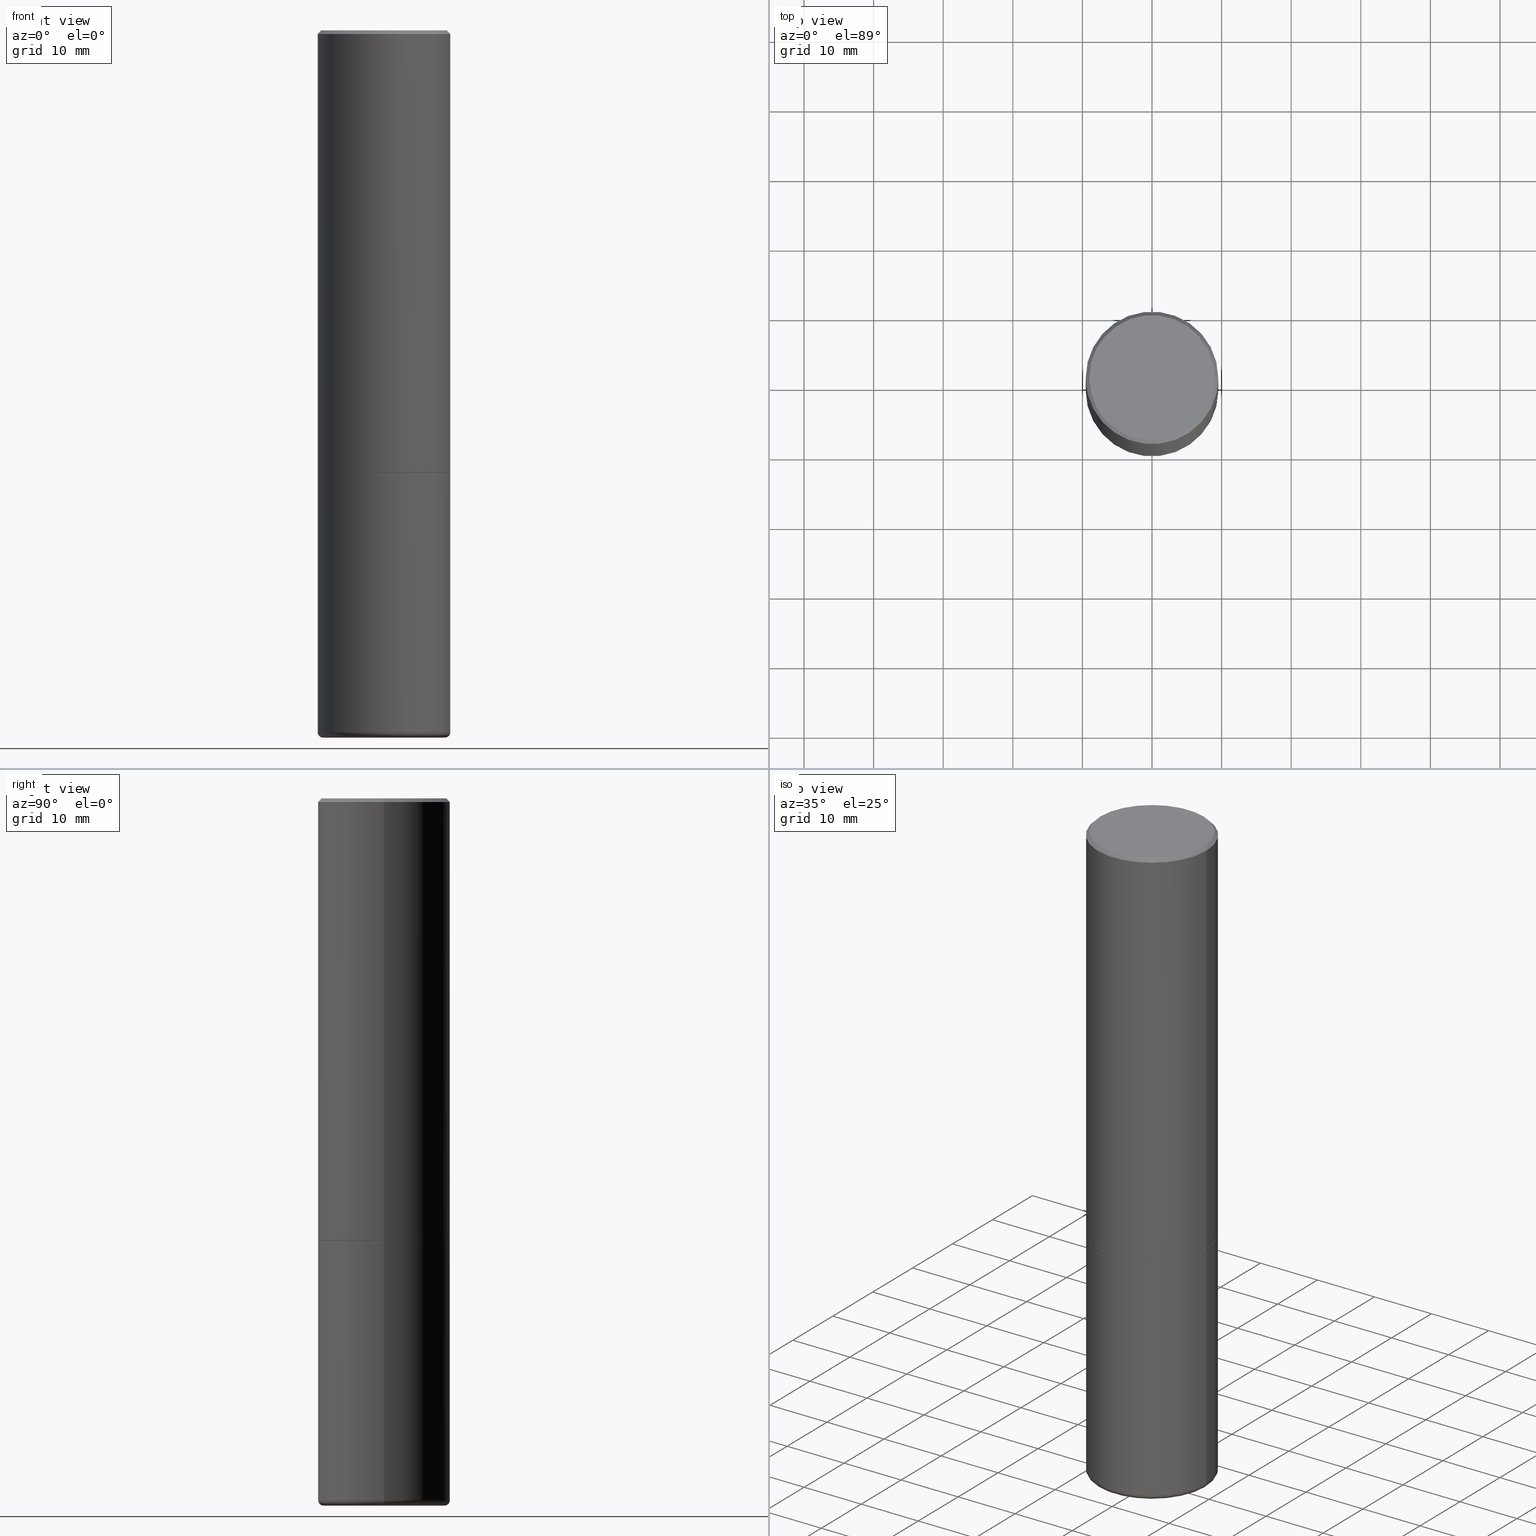
[diagram: canonical four-view strip — front | top / right | iso, engineering-drawing reading convention]
A machine part, canonical four-view strip (front | top / right | iso — engineering-drawing reading convention). The complete STEP part file that produces these views, byte-faithful:
ISO-10303-21;
HEADER;
FILE_DESCRIPTION (( 'STEP AP203' ),
    '1' );
FILE_NAME ('38187.STEP',
    '2023-03-22T20:31:44',
    ( '' ),
    ( '' ),
    'SwSTEP 2.0',
    'SolidWorks 2022',
    '' );
FILE_SCHEMA (( 'CONFIG_CONTROL_DESIGN' ));
ENDSEC;

DATA;
#1 = ADVANCED_FACE ( 'NONE', ( #288 ), #439, .T. ) ;
#2 = LINE ( 'NONE', #71, #294 ) ;
#3 = PLANE ( 'NONE',  #382 ) ;
#4 = CC_DESIGN_PERSON_AND_ORGANIZATION_ASSIGNMENT ( #216, #50, ( #195 ) ) ;
#5 = VERTEX_POINT ( 'NONE', #251 ) ;
#6 = VECTOR ( 'NONE', #188, 39.37007874015748143 ) ;
#7 = DIRECTION ( 'NONE',  ( 0.7071067811870063169, -2.468850131087062801E-15, 0.7071067811860887176 ) ) ;
#8 = DIRECTION ( 'NONE',  ( 1.000000000000000000, -6.982962677686268288E-15, 0.000000000000000000 ) ) ;
#9 = ORIENTED_EDGE ( 'NONE', *, *, #316, .F. ) ;
#10 = EDGE_CURVE ( 'NONE', #55, #329, #252, .T. ) ;
#11 = CARTESIAN_POINT ( 'NONE',  ( 6.113672015462842613E-29, -8.728703347107864943E-15, -2.500000000000000000 ) ) ;
#12 = VERTEX_POINT ( 'NONE', #256 ) ;
#13 = ORIENTED_EDGE ( 'NONE', *, *, #255, .F. ) ;
#14 = COORDINATED_UNIVERSAL_TIME_OFFSET ( 5, 0, .BEHIND. ) ;
#15 = EDGE_CURVE ( 'NONE', #12, #181, #220, .T. ) ;
#16 = ORIENTED_EDGE ( 'NONE', *, *, #264, .T. ) ;
#17 = CARTESIAN_POINT ( 'NONE',  ( 0.3549999999999997047, -2.538996582575038287E-15, 4.268512490117958041E-18 ) ) ;
#18 = CIRCLE ( 'NONE', #327, 0.3750000000000000555 ) ;
#19 = ORIENTED_EDGE ( 'NONE', *, *, #337, .T. ) ;
#20 = APPROVAL_STATUS ( 'not_yet_approved' ) ;
#21 = CARTESIAN_POINT ( 'NONE',  ( -0.3749999999999999445, -1.732985487172565737E-15, -2.499000000000000998 ) ) ;
#22 = MANIFOLD_SOLID_BREP ( 'Body-Move/Copy2[2]', #65 ) ;
#23 = CARTESIAN_POINT ( 'NONE',  ( 0.3750000000000000555, -2.618611004132350016E-15, 1.828566290923476203E-29 ) ) ;
#24 = CONICAL_SURFACE ( 'NONE', #31, 751.2258538476771719, 1.518436449235074370 ) ;
#25 = CC_DESIGN_APPROVAL ( #168, ( #415 ) ) ;
#26 = DATE_TIME_ROLE ( 'classification_date' ) ;
#27 = DIRECTION ( 'NONE',  ( 0.9986295347545742773, -7.033825938271996334E-15, -0.05233595624293620185 ) ) ;
#28 = PERSON_AND_ORGANIZATION ( #379, #126 ) ;
#29 = CARTESIAN_POINT ( 'NONE',  ( 2.618611004132411153E-15, 0.3749999999999912847, -2.500000000000001332 ) ) ;
#30 = CARTESIAN_POINT ( 'NONE',  ( 9.781875224740546387E-29, -1.396592535537258233E-14, -4.000000000000000000 ) ) ;
#31 = AXIS2_PLACEMENT_3D ( 'NONE', #433, #57, #161 ) ;
#32 = AXIS2_PLACEMENT_3D ( 'NONE', #411, #314, #67 ) ;
#33 = CARTESIAN_POINT ( 'NONE',  ( -0.3434299213127118833, -1.136124910089014506E-14, -4.000000000000000000 ) ) ;
#34 = CARTESIAN_POINT ( 'NONE',  ( 6.113672015462840371E-29, -8.728703347107863365E-15, -2.499999999999999556 ) ) ;
#35 = DIRECTION ( 'NONE',  ( -2.445468806185136597E-29, 3.491481338843145583E-15, 1.000000000000000000 ) ) ;
#36 = VERTEX_POINT ( 'NONE', #298 ) ;
#37 = AXIS2_PLACEMENT_3D ( 'NONE', #34, #246, #143 ) ;
#38 = DIRECTION ( 'NONE',  ( -1.000000000000000000, 7.105427357600985293E-15, 0.000000000000000000 ) ) ;
#39 = DIRECTION ( 'NONE',  ( -2.445468806185136597E-29, 3.491481338843145583E-15, 1.000000000000000000 ) ) ;
#40 = ADVANCED_FACE ( 'NONE', ( #56 ), #24, .F. ) ;
#41 = EDGE_LOOP ( 'NONE', ( #49, #349, #292, #92 ) ) ;
#42 =( NAMED_UNIT ( * ) SI_UNIT ( $, .STERADIAN. ) SOLID_ANGLE_UNIT ( ) );
#43 = AXIS2_PLACEMENT_3D ( 'NONE', #398, #61, #229 ) ;
#44 = EDGE_CURVE ( 'NONE', #79, #5, #374, .T. ) ;
#45 = AXIS2_PLACEMENT_3D ( 'NONE', #348, #100, #38 ) ;
#46 = ORIENTED_EDGE ( 'NONE', *, *, #10, .F. ) ;
#47 = CC_DESIGN_PERSON_AND_ORGANIZATION_ASSIGNMENT ( #87, #261, ( #415 ) ) ;
#48 = DIRECTION ( 'NONE',  ( -2.445468806185136877E-29, 3.491481338843145188E-15, 1.000000000000000000 ) ) ;
#49 = ORIENTED_EDGE ( 'NONE', *, *, #267, .F. ) ;
#50 = PERSON_AND_ORGANIZATION_ROLE ( 'creator' ) ;
#51 = EDGE_CURVE ( 'NONE', #283, #244, #78, .T. ) ;
#52 = ORIENTED_EDGE ( 'NONE', *, *, #350, .T. ) ;
#53 = DIRECTION ( 'NONE',  ( 0.000000000000000000, 0.000000000000000000, 1.000000000000000000 ) ) ;
#54 = AXIS2_PLACEMENT_3D ( 'NONE', #403, #192, #90 ) ;
#55 = VERTEX_POINT ( 'NONE', #367 ) ;
#56 = FACE_OUTER_BOUND ( 'NONE', #114, .T. ) ;
#57 = DIRECTION ( 'NONE',  ( 2.445468806185136597E-29, -3.491481338843145583E-15, -1.000000000000000000 ) ) ;
#58 = ADVANCED_FACE ( 'NONE', ( #59 ), #127, .T. ) ;
#59 = FACE_OUTER_BOUND ( 'NONE', #77, .T. ) ;
#60 = CIRCLE ( 'NONE', #279, 0.3749999999999996669 ) ;
#61 = DIRECTION ( 'NONE',  ( -2.445468806185136597E-29, 3.491481338843145583E-15, 1.000000000000000000 ) ) ;
#62 = CARTESIAN_POINT ( 'NONE',  ( 9.708611703455221728E-29, -1.386132446382218587E-14, -3.970041113957362811 ) ) ;
#63 = EDGE_CURVE ( 'NONE', #322, #181, #118, .T. ) ;
#64 = DIRECTION ( 'NONE',  ( -2.445468806185136597E-29, 3.491481338843145583E-15, 1.000000000000000000 ) ) ;
#65 = CLOSED_SHELL ( 'NONE', ( #96, #401, #128, #1, #221, #200, #372, #282 ) ) ;
#66 = CARTESIAN_POINT ( 'NONE',  ( 0.3750000000000000555, -1.134731435124021338E-14, -2.500000000000000000 ) ) ;
#67 = DIRECTION ( 'NONE',  ( -1.000000000000000000, 6.982962677686265922E-15, -4.876176775795935793E-29 ) ) ;
#68 = DIRECTION ( 'NONE',  ( 1.000000000000000000, -6.982962677686262766E-15, 0.000000000000000000 ) ) ;
#69 = EDGE_LOOP ( 'NONE', ( #285, #313, #124, #326 ) ) ;
#70 = CIRCLE ( 'NONE', #368, 0.3750000000000000555 ) ;
#71 = CARTESIAN_POINT ( 'NONE',  ( -0.3739999999999999991, -6.071273515365087887E-15, -2.499999999999999556 ) ) ;
#72 = EDGE_CURVE ( 'NONE', #426, #157, #332, .T. ) ;
#73 = ORIENTED_EDGE ( 'NONE', *, *, #72, .T. ) ;
#74 = CARTESIAN_POINT ( 'NONE',  ( 6.113672015462840371E-29, -8.728703347107863365E-15, -2.499999999999999556 ) ) ;
#75 = ORIENTED_EDGE ( 'NONE', *, *, #140, .T. ) ;
#76 = DIRECTION ( 'NONE',  ( -2.445468806185136597E-29, 3.491481338843145583E-15, 1.000000000000000000 ) ) ;
#77 = EDGE_LOOP ( 'NONE', ( #289, #178, #345, #422 ) ) ;
#78 = CIRCLE ( 'NONE', #391, 0.3750000000000000555 ) ;
#79 = VERTEX_POINT ( 'NONE', #21 ) ;
#80 =( CONVERSION_BASED_UNIT ( 'INCH', #323 ) LENGTH_UNIT ( ) NAMED_UNIT ( #410 ) );
#81 =( LENGTH_UNIT ( ) NAMED_UNIT ( * ) SI_UNIT ( $, .METRE. ) );
#82 = DIRECTION ( 'NONE',  ( 1.000000000000000000, -6.982962677686264344E-15, 0.000000000000000000 ) ) ;
#83 = CIRCLE ( 'NONE', #346, 0.3434299213127118833 ) ;
#84 = AXIS2_PLACEMENT_3D ( 'NONE', #342, #170, #307 ) ;
#85 = DIRECTION ( 'NONE',  ( 1.000000000000000000, -6.982962677686265922E-15, 4.876176775795935793E-29 ) ) ;
#86 = VECTOR ( 'NONE', #27, 39.37007874015748143 ) ;
#87 = PERSON_AND_ORGANIZATION ( #379, #126 ) ;
#88 = DIRECTION ( 'NONE',  ( 0.7071067811865469066, -7.319954787623252890E-15, -0.7071067811865479058 ) ) ;
#89 = PERSON_AND_ORGANIZATION ( #379, #126 ) ;
#90 = DIRECTION ( 'NONE',  ( 1.000000000000000000, -6.982962677686266711E-15, 0.000000000000000000 ) ) ;
#91 = CALENDAR_DATE ( 2023, 22, 3 ) ;
#92 = ORIENTED_EDGE ( 'NONE', *, *, #302, .F. ) ;
#93 = DIRECTION ( 'NONE',  ( 1.000000000000000000, -6.982962677686265133E-15, 0.000000000000000000 ) ) ;
#94 = CIRCLE ( 'NONE', #54, 0.3749999999999996669 ) ;
#95 = COORDINATED_UNIVERSAL_TIME_OFFSET ( 5, 0, .BEHIND. ) ;
#96 = ADVANCED_FACE ( 'NONE', ( #363 ), #239, .T. ) ;
#97 = PLANE ( 'NONE',  #272 ) ;
#98 = CARTESIAN_POINT ( 'NONE',  ( 4.890937612370276662E-31, -6.982962677686296539E-17, -0.02000000000000001776 ) ) ;
#99 = EDGE_CURVE ( 'NONE', #5, #157, #304, .T. ) ;
#100 = DIRECTION ( 'NONE',  ( 7.105427357601001859E-15, 1.000000000000000000, -3.491481338843145583E-15 ) ) ;
#101 = LOCAL_TIME ( 16, 31, 44.00000000000000000, #95 ) ;
#102 = ORIENTED_EDGE ( 'NONE', *, *, #63, .T. ) ;
#103 = FACE_OUTER_BOUND ( 'NONE', #427, .T. ) ;
#104 = EDGE_LOOP ( 'NONE', ( #75, #16, #150, #182 ) ) ;
#105 = CARTESIAN_POINT ( 'NONE',  ( 6.113672015462840371E-29, -8.728703347107863365E-15, -2.499999999999999556 ) ) ;
#106 = DIRECTION ( 'NONE',  ( 1.000000000000000000, -6.982962677686264344E-15, 0.000000000000000000 ) ) ;
#107 = ORIENTED_EDGE ( 'NONE', *, *, #276, .T. ) ;
#108 = VECTOR ( 'NONE', #88, 39.37007874015748854 ) ;
#109 = AXIS2_PLACEMENT_3D ( 'NONE', #394, #76, #351 ) ;
#110 = LOCAL_TIME ( 16, 31, 44.00000000000000000, #404 ) ;
#111 = APPROVAL_STATUS ( 'not_yet_approved' ) ;
#112 = EDGE_CURVE ( 'NONE', #283, #329, #224, .T. ) ;
#113 = PRODUCT_RELATED_PRODUCT_CATEGORY ( 'detail', '', ( #263 ) ) ;
#114 = EDGE_LOOP ( 'NONE', ( #419, #158, #352 ) ) ;
#115 = FACE_OUTER_BOUND ( 'NONE', #69, .T. ) ;
#116 = EDGE_LOOP ( 'NONE', ( #380, #107, #208, #46 ) ) ;
#117 = VERTEX_POINT ( 'NONE', #296 ) ;
#118 = CIRCLE ( 'NONE', #381, 0.3434299213127118833 ) ;
#119 = SECURITY_CLASSIFICATION ( '', '', #291 ) ;
#120 = APPROVAL_ROLE ( '' ) ;
#121 = EDGE_CURVE ( 'NONE', #12, #322, #129, .T. ) ;
#122 = PERSON_AND_ORGANIZATION ( #379, #126 ) ;
#123 = CARTESIAN_POINT ( 'NONE',  ( 6.113672015462842613E-29, -8.728703347107864943E-15, -2.500000000000000000 ) ) ;
#124 = ORIENTED_EDGE ( 'NONE', *, *, #176, .F. ) ;
#125 = DATE_AND_TIME ( #162, #101 ) ;
#126 = ORGANIZATION ( 'UNSPECIFIED', 'UNSPECIFIED', '' ) ;
#127 = CYLINDRICAL_SURFACE ( 'NONE', #189, 0.3750000000000000555 ) ;
#128 = ADVANCED_FACE ( 'NONE', ( #136 ), #339, .T. ) ;
#129 = LINE ( 'NONE', #336, #172 ) ;
#130 = DATE_AND_TIME ( #91, #110 ) ;
#131 = DIRECTION ( 'NONE',  ( -2.445468806185136597E-29, 3.491481338843145583E-15, 1.000000000000000000 ) ) ;
#132 = PERSON_AND_ORGANIZATION ( #379, #126 ) ;
#133 = PRODUCT_DEFINITION_SHAPE ( 'NONE', 'NONE',  #195 ) ;
#134 = DIRECTION ( 'NONE',  ( -1.000000000000000000, 6.982962677686265922E-15, -4.876176775795935793E-29 ) ) ;
#135 = VECTOR ( 'NONE', #268, 39.37007874015748854 ) ;
#136 = FACE_OUTER_BOUND ( 'NONE', #243, .T. ) ;
#137 = DIRECTION ( 'NONE',  ( -0.7071067811870063169, 7.493145998872012346E-15, 0.7071067811860887176 ) ) ;
#138 = CARTESIAN_POINT ( 'NONE',  ( 6.113672015462842613E-29, -8.728703347107864943E-15, -2.500000000000000000 ) ) ;
#139 = AXIS2_PLACEMENT_3D ( 'NONE', #123, #392, #82 ) ;
#140 = EDGE_CURVE ( 'NONE', #181, #322, #83, .T. ) ;
#141 = CIRCLE ( 'NONE', #241, 0.03000000000000002318 ) ;
#142 = EDGE_LOOP ( 'NONE', ( #360, #210 ) ) ;
#143 = DIRECTION ( 'NONE',  ( 1.000000000000000000, -6.982962677686268288E-15, 0.000000000000000000 ) ) ;
#144 = CC_DESIGN_PERSON_AND_ORGANIZATION_ASSIGNMENT ( #132, #407, ( #415 ) ) ;
#145 = DIRECTION ( 'NONE',  ( 1.000000000000000000, -6.982962677686265922E-15, 4.876176775795935793E-29 ) ) ;
#146 = ORIENTED_EDGE ( 'NONE', *, *, #72, .F. ) ;
#147 = CALENDAR_DATE ( 2023, 22, 3 ) ;
#148 = AXIS2_PLACEMENT_3D ( 'NONE', #425, #156, #219 ) ;
#149 = DIRECTION ( 'NONE',  ( 1.000000000000000000, 0.000000000000000000, 0.000000000000000000 ) ) ;
#150 = ORIENTED_EDGE ( 'NONE', *, *, #51, .F. ) ;
#151 = PERSON_AND_ORGANIZATION_ROLE ( 'design_owner' ) ;
#152 = ORIENTED_EDGE ( 'NONE', *, *, #350, .F. ) ;
#153 = VERTEX_POINT ( 'NONE', #167 ) ;
#154 = CARTESIAN_POINT ( 'NONE',  ( 0.000000000000000000, 0.000000000000000000, 0.000000000000000000 ) ) ;
#155 = CONICAL_SURFACE ( 'NONE', #173, 751.2258538476771719, 1.518436449235074370 ) ;
#156 = DIRECTION ( 'NONE',  ( -2.445468806185136597E-29, 3.491481338843145583E-15, 1.000000000000000000 ) ) ;
#157 = VERTEX_POINT ( 'NONE', #259 ) ;
#158 = ORIENTED_EDGE ( 'NONE', *, *, #121, .T. ) ;
#159 = CARTESIAN_POINT ( 'NONE',  ( 0.3749999999999998335, -2.618611004132348439E-15, 1.828566290923475082E-29 ) ) ;
#160 = VECTOR ( 'NONE', #48, 39.37007874015748143 ) ;
#161 = DIRECTION ( 'NONE',  ( -1.000000000000000000, 6.982962677686267499E-15, 0.000000000000000000 ) ) ;
#162 = CALENDAR_DATE ( 2023, 22, 3 ) ;
#163 = DIRECTION ( 'NONE',  ( -2.445468806185136597E-29, 3.491481338843145583E-15, 1.000000000000000000 ) ) ;
#164 = APPROVAL_DATE_TIME ( #186, #334 ) ;
#165 = CARTESIAN_POINT ( 'NONE',  ( 0.000000000000000000, 0.000000000000000000, 0.000000000000000000 ) ) ;
#166 = EDGE_CURVE ( 'NONE', #5, #79, #222, .T. ) ;
#167 = CARTESIAN_POINT ( 'NONE',  ( 0.3739999999999999991, -1.134033138856252737E-14, -2.499999999999999556 ) ) ;
#168 = APPROVAL ( #402, 'UNSPECIFIED' ) ;
#169 = DIRECTION ( 'NONE',  ( -2.445468806185136877E-29, 3.491481338843145188E-15, 1.000000000000000000 ) ) ;
#170 = DIRECTION ( 'NONE',  ( -2.445468806185136597E-29, 3.491481338843145583E-15, 1.000000000000000000 ) ) ;
#171 = LINE ( 'NONE', #308, #185 ) ;
#172 = VECTOR ( 'NONE', #293, 39.37007874015748143 ) ;
#173 = AXIS2_PLACEMENT_3D ( 'NONE', #207, #328, #428 ) ;
#174 = CARTESIAN_POINT ( 'NONE',  ( 9.708611703455221728E-29, -1.386132446382218587E-14, -3.970041113957362811 ) ) ;
#175 = VERTEX_POINT ( 'NONE', #365 ) ;
#176 = EDGE_CURVE ( 'NONE', #157, #175, #94, .T. ) ;
#177 = CARTESIAN_POINT ( 'NONE',  ( -0.3749999999999998335, 2.664535259100374514E-15, -1.844600658845588757E-29 ) ) ;
#178 = ORIENTED_EDGE ( 'NONE', *, *, #420, .T. ) ;
#179 = APPROVAL_PERSON_ORGANIZATION ( #213, #225, #120 ) ;
#180 = APPLICATION_PROTOCOL_DEFINITION ( 'international standard', 'config_control_design', 1994, #270 ) ;
#181 = VERTEX_POINT ( 'NONE', #191 ) ;
#182 = ORIENTED_EDGE ( 'NONE', *, *, #198, .F. ) ;
#183 = EDGE_LOOP ( 'NONE', ( #206, #19, #257, #343 ) ) ;
#184 = VECTOR ( 'NONE', #442, 39.37007874015748143 ) ;
#185 = VECTOR ( 'NONE', #7, 39.37007874015748143 ) ;
#186 = DATE_AND_TIME ( #370, #235 ) ;
#187 = CARTESIAN_POINT ( 'NONE',  ( 1.238768918986657283E-19, -1.390308427933570764E-14, -3.982001600484653903 ) ) ;
#188 = DIRECTION ( 'NONE',  ( -2.445468806185136877E-29, 3.491481338843145188E-15, 1.000000000000000000 ) ) ;
#189 = AXIS2_PLACEMENT_3D ( 'NONE', #165, #331, #85 ) ;
#190 = AXIS2_PLACEMENT_3D ( 'NONE', #105, #35, #8 ) ;
#191 = CARTESIAN_POINT ( 'NONE',  ( 0.3434299213127118833, -1.636408367829998185E-14, -4.000000000000000000 ) ) ;
#192 = DIRECTION ( 'NONE',  ( -2.445468806185136597E-29, 3.491481338843145583E-15, 1.000000000000000000 ) ) ;
#193 = ADVANCED_FACE ( 'NONE', ( #335 ), #97, .F. ) ;
#194 = DIRECTION ( 'NONE',  ( -6.982962677686266711E-15, -1.000000000000000000, 3.491481338843145583E-15 ) ) ;
#195 = PRODUCT_DEFINITION ( 'UNKNOWN', '', #415, #412 ) ;
#196 = DIRECTION ( 'NONE',  ( 1.000000000000000000, -6.982962677686267499E-15, 4.883557194083113462E-29 ) ) ;
#197 = AXIS2_PLACEMENT_3D ( 'NONE', #74, #209, #324 ) ;
#198 = EDGE_CURVE ( 'NONE', #181, #283, #141, .T. ) ;
#199 = FACE_OUTER_BOUND ( 'NONE', #116, .T. ) ;
#200 = ADVANCED_FACE ( 'NONE', ( #103 ), #430, .T. ) ;
#201 = FACE_OUTER_BOUND ( 'NONE', #396, .T. ) ;
#202 = ORIENTED_EDGE ( 'NONE', *, *, #121, .F. ) ;
#203 = CYLINDRICAL_SURFACE ( 'NONE', #303, 0.3749999999999998335 ) ;
#204 = VECTOR ( 'NONE', #169, 39.37007874015748143 ) ;
#205 = LINE ( 'NONE', #238, #135 ) ;
#206 = ORIENTED_EDGE ( 'NONE', *, *, #441, .T. ) ;
#207 = CARTESIAN_POINT ( 'NONE',  ( 1.060161601562722349E-27, -1.513629795093808134E-13, -43.35208034064213933 ) ) ;
#208 = ORIENTED_EDGE ( 'NONE', *, *, #112, .T. ) ;
#209 = DIRECTION ( 'NONE',  ( -2.445468806185136597E-29, 3.491481338843145583E-15, 1.000000000000000000 ) ) ;
#210 = ORIENTED_EDGE ( 'NONE', *, *, #10, .T. ) ;
#211 = AXIS2_PLACEMENT_3D ( 'NONE', #435, #338, #266 ) ;
#212 = APPROVAL_PERSON_ORGANIZATION ( #89, #168, #226 ) ;
#213 = PERSON_AND_ORGANIZATION ( #379, #126 ) ;
#214 = UNCERTAINTY_MEASURE_WITH_UNIT (LENGTH_MEASURE( 1.000000000000000082E-05 ), #80, 'distance_accuracy_value', 'NONE');
#215 = EDGE_LOOP ( 'NONE', ( #146, #152, #389, #395 ) ) ;
#216 = PERSON_AND_ORGANIZATION ( #379, #126 ) ;
#217 = DIRECTION ( 'NONE',  ( 2.445468806185136597E-29, -3.491481338843145583E-15, -1.000000000000000000 ) ) ;
#218 = ORIENTED_EDGE ( 'NONE', *, *, #337, .F. ) ;
#219 = DIRECTION ( 'NONE',  ( 1.000000000000000000, -6.982962677686265922E-15, 4.876231632511992107E-29 ) ) ;
#220 = LINE ( 'NONE', #187, #86 ) ;
#221 = ADVANCED_FACE ( 'NONE', ( #341 ), #203, .T. ) ;
#222 = CIRCLE ( 'NONE', #230, 0.3750000000000000555 ) ;
#223 = DATE_TIME_ROLE ( 'creation_date' ) ;
#224 = LINE ( 'NONE', #23, #6 ) ;
#225 = APPROVAL ( #111, 'UNSPECIFIED' ) ;
#226 = APPROVAL_ROLE ( '' ) ;
#227 = CARTESIAN_POINT ( 'NONE',  ( 4.890937612370276662E-31, -6.982962677686296539E-17, -0.02000000000000001776 ) ) ;
#228 = COORDINATED_UNIVERSAL_TIME_OFFSET ( 5, 0, .BEHIND. ) ;
#229 = DIRECTION ( 'NONE',  ( 1.000000000000000000, -6.982962677686268288E-15, 0.000000000000000000 ) ) ;
#230 = AXIS2_PLACEMENT_3D ( 'NONE', #369, #400, #438 ) ;
#231 = APPROVAL_ROLE ( '' ) ;
#232 = CC_DESIGN_APPROVAL ( #225, ( #195 ) ) ;
#233 = ORIENTED_EDGE ( 'NONE', *, *, #276, .F. ) ;
#234 = DIRECTION ( 'NONE',  ( 1.000000000000000000, -6.982962677686266711E-15, 0.000000000000000000 ) ) ;
#235 = LOCAL_TIME ( 16, 31, 44.00000000000000000, #295 ) ;
#236 = CALENDAR_DATE ( 2023, 22, 3 ) ;
#237 = DIRECTION ( 'NONE',  ( -2.445468806185136597E-29, 3.491481338843145583E-15, 1.000000000000000000 ) ) ;
#238 = CARTESIAN_POINT ( 'NONE',  ( -0.3749999999999996669, 2.548781377355484746E-15, -0.02000000000000001776 ) ) ;
#239 = CONICAL_SURFACE ( 'NONE', #43, 0.3739999999999999991, 0.7853981633980972044 ) ;
#240 = DIRECTION ( 'NONE',  ( -2.445468806185136597E-29, 3.491481338843145583E-15, 1.000000000000000000 ) ) ;
#241 = AXIS2_PLACEMENT_3D ( 'NONE', #371, #194, #68 ) ;
#242 = DIRECTION ( 'NONE',  ( 1.000000000000000000, -6.982962677686265922E-15, 4.876231632511992107E-29 ) ) ;
#243 = EDGE_LOOP ( 'NONE', ( #247, #73, #356, #9 ) ) ;
#244 = VERTEX_POINT ( 'NONE', #418 ) ;
#245 = EDGE_LOOP ( 'NONE', ( #202, #315, #300 ) ) ;
#246 = DIRECTION ( 'NONE',  ( -2.445468806185136597E-29, 3.491481338843145583E-15, 1.000000000000000000 ) ) ;
#247 = ORIENTED_EDGE ( 'NONE', *, *, #397, .F. ) ;
#248 = DATE_AND_TIME ( #147, #434 ) ;
#249 =( NAMED_UNIT ( * ) PLANE_ANGLE_UNIT ( ) SI_UNIT ( $, .RADIAN. ) );
#250 = ORIENTED_EDGE ( 'NONE', *, *, #441, .F. ) ;
#251 = CARTESIAN_POINT ( 'NONE',  ( 0.3750000000000000555, -1.134382286990137353E-14, -2.499000000000000998 ) ) ;
#252 = CIRCLE ( 'NONE', #139, 0.3750000000000000555 ) ;
#253 = AXIS2_PLACEMENT_3D ( 'NONE', #359, #386, #278 ) ;
#254 = APPROVAL_DATE_TIME ( #248, #225 ) ;
#255 = EDGE_CURVE ( 'NONE', #117, #153, #375, .T. ) ;
#256 = CARTESIAN_POINT ( 'NONE',  ( 9.737947202935716887E-29, -1.390296040244390660E-14, -3.982001600484653903 ) ) ;
#257 = ORIENTED_EDGE ( 'NONE', *, *, #166, .F. ) ;
#258 = ADVANCED_FACE ( 'NONE', ( #373 ), #362, .T. ) ;
#259 = CARTESIAN_POINT ( 'NONE',  ( 0.3749999999999996669, -2.642516375941185268E-15, -0.02000000000000001776 ) ) ;
#260 = DIRECTION ( 'NONE',  ( 1.000000000000000000, -6.982962677686265133E-15, 0.000000000000000000 ) ) ;
#261 = PERSON_AND_ORGANIZATION_ROLE ( 'creator' ) ;
#262 = DIRECTION ( 'NONE',  ( 2.445468806185136597E-29, -3.491481338843145583E-15, -1.000000000000000000 ) ) ;
#263 = PRODUCT ( '38187', '38187', '', ( #321 ) ) ;
#264 = EDGE_CURVE ( 'NONE', #322, #244, #393, .T. ) ;
#265 = AXIS2_PLACEMENT_3D ( 'NONE', #227, #262, #405 ) ;
#266 = DIRECTION ( 'NONE',  ( 1.000000000000000000, -6.982962677686264344E-15, 0.000000000000000000 ) ) ;
#267 = EDGE_CURVE ( 'NONE', #79, #175, #277, .T. ) ;
#268 = DIRECTION ( 'NONE',  ( -0.7071067811865469066, 2.468850131082251144E-15, -0.7071067811865479058 ) ) ;
#269 = CARTESIAN_POINT ( 'NONE',  ( -1.043851414335219820E-46, 1.490343170380447200E-32, 4.268512490100411279E-18 ) ) ;
#270 = APPLICATION_CONTEXT ( 'configuration controlled 3d designs of mechanical parts and assemblies' ) ;
#271 = PLANE ( 'NONE',  #32 ) ;
#272 = AXIS2_PLACEMENT_3D ( 'NONE', #29, #301, #134 ) ;
#273 = CC_DESIGN_APPROVAL ( #334, ( #119 ) ) ;
#274 = ORIENTED_EDGE ( 'NONE', *, *, #255, .T. ) ;
#275 = DIRECTION ( 'NONE',  ( -2.445468806185136597E-29, 3.491481338843145583E-15, 1.000000000000000000 ) ) ;
#276 = EDGE_CURVE ( 'NONE', #244, #283, #70, .T. ) ;
#277 = LINE ( 'NONE', #177, #204 ) ;
#278 = DIRECTION ( 'NONE',  ( 1.000000000000000000, -6.982962677686265922E-15, 4.876176775795935793E-29 ) ) ;
#279 = AXIS2_PLACEMENT_3D ( 'NONE', #98, #306, #383 ) ;
#280 = CLOSED_SHELL ( 'NONE', ( #414, #258, #58, #193, #364, #424, #40 ) ) ;
#281 = CARTESIAN_POINT ( 'NONE',  ( -0.3750000000000000555, 2.664535259100376091E-15, -1.844600658845589598E-29 ) ) ;
#282 = ADVANCED_FACE ( 'NONE', ( #378 ), #271, .F. ) ;
#283 = VERTEX_POINT ( 'NONE', #421 ) ;
#284 = APPLICATION_PROTOCOL_DEFINITION ( 'international standard', 'config_control_design', 1994, #305 ) ;
#285 = ORIENTED_EDGE ( 'NONE', *, *, #166, .T. ) ;
#286 = ORIENTED_EDGE ( 'NONE', *, *, #264, .F. ) ;
#287 = CC_DESIGN_SECURITY_CLASSIFICATION ( #119, ( #415 ) ) ;
#288 = FACE_OUTER_BOUND ( 'NONE', #215, .T. ) ;
#289 = ORIENTED_EDGE ( 'NONE', *, *, #51, .T. ) ;
#290 = EDGE_CURVE ( 'NONE', #329, #55, #18, .T. ) ;
#291 = SECURITY_CLASSIFICATION_LEVEL ( 'unclassified' ) ;
#292 = ORIENTED_EDGE ( 'NONE', *, *, #99, .T. ) ;
#293 = DIRECTION ( 'NONE',  ( -0.9986295347545742773, 6.790662755453668466E-15, -0.05233595624293620185 ) ) ;
#294 = VECTOR ( 'NONE', #137, 39.37007874015748143 ) ;
#295 = COORDINATED_UNIVERSAL_TIME_OFFSET ( 5, 0, .BEHIND. ) ;
#296 = CARTESIAN_POINT ( 'NONE',  ( -0.3739999999999999991, -6.065975061016867852E-15, -2.499999999999999556 ) ) ;
#297 = PERSON_AND_ORGANIZATION_ROLE ( 'classification_officer' ) ;
#298 = CARTESIAN_POINT ( 'NONE',  ( -0.3549999999999997047, 2.513866563967053491E-15, 4.268512490082953109E-18 ) ) ;
#299 = APPROVAL_DATE_TIME ( #436, #168 ) ;
#300 = ORIENTED_EDGE ( 'NONE', *, *, #63, .F. ) ;
#301 = DIRECTION ( 'NONE',  ( 2.438088387897960049E-29, -3.491481338843145188E-15, -1.000000000000000000 ) ) ;
#302 = EDGE_CURVE ( 'NONE', #175, #157, #60, .T. ) ;
#303 = AXIS2_PLACEMENT_3D ( 'NONE', #347, #275, #145 ) ;
#304 = LINE ( 'NONE', #159, #184 ) ;
#305 = APPLICATION_CONTEXT ( 'configuration controlled 3d designs of mechanical parts and assemblies' ) ;
#306 = DIRECTION ( 'NONE',  ( -2.445468806185136597E-29, 3.491481338843145583E-15, 1.000000000000000000 ) ) ;
#307 = DIRECTION ( 'NONE',  ( 1.000000000000000000, -6.982962677686265922E-15, 4.876176775795935793E-29 ) ) ;
#308 = CARTESIAN_POINT ( 'NONE',  ( 0.3739999999999999991, -1.134033138856252737E-14, -2.499999999999999556 ) ) ;
#309 = LOCAL_TIME ( 16, 31, 44.00000000000000000, #228 ) ;
#310 = ORIENTED_EDGE ( 'NONE', *, *, #384, .T. ) ;
#311 = DIRECTION ( 'NONE',  ( 1.000000000000000000, -6.982962677686266711E-15, 0.000000000000000000 ) ) ;
#312 = MANIFOLD_SOLID_BREP ( 'Body-Move/Copy2[1]', #280 ) ;
#313 = ORIENTED_EDGE ( 'NONE', *, *, #267, .T. ) ;
#314 = DIRECTION ( 'NONE',  ( 2.438088387897960049E-29, -3.491481338843145188E-15, -1.000000000000000000 ) ) ;
#315 = ORIENTED_EDGE ( 'NONE', *, *, #15, .T. ) ;
#316 = EDGE_CURVE ( 'NONE', #36, #175, #205, .T. ) ;
#317 = CYLINDRICAL_SURFACE ( 'NONE', #253, 0.3749999999999998335 ) ;
#318 = AXIS2_PLACEMENT_3D ( 'NONE', #154, #53, #149 ) ;
#319 = ORIENTED_EDGE ( 'NONE', *, *, #397, .T. ) ;
#320 = CC_DESIGN_PERSON_AND_ORGANIZATION_ASSIGNMENT ( #122, #151, ( #263 ) ) ;
#321 = MECHANICAL_CONTEXT ( 'NONE', #270, 'mechanical' ) ;
#322 = VERTEX_POINT ( 'NONE', #33 ) ;
#323 = LENGTH_MEASURE_WITH_UNIT ( LENGTH_MEASURE( 0.02539999999999999897 ), #81 );
#324 = DIRECTION ( 'NONE',  ( 1.000000000000000000, -6.982962677686268288E-15, 0.000000000000000000 ) ) ;
#325 = CARTESIAN_POINT ( 'NONE',  ( 4.890937612370276662E-31, -6.982962677686296539E-17, -0.02000000000000001776 ) ) ;
#326 = ORIENTED_EDGE ( 'NONE', *, *, #99, .F. ) ;
#327 = AXIS2_PLACEMENT_3D ( 'NONE', #11, #240, #106 ) ;
#328 = DIRECTION ( 'NONE',  ( 2.445468806185136597E-29, -3.491481338843145583E-15, -1.000000000000000000 ) ) ;
#329 = VERTEX_POINT ( 'NONE', #66 ) ;
#330 = CC_DESIGN_PERSON_AND_ORGANIZATION_ASSIGNMENT ( #28, #297, ( #119 ) ) ;
#331 = DIRECTION ( 'NONE',  ( -2.445468806185136597E-29, 3.491481338843145583E-15, 1.000000000000000000 ) ) ;
#332 = LINE ( 'NONE', #437, #108 ) ;
#333 = SHAPE_DEFINITION_REPRESENTATION ( #133, #361 ) ;
#334 = APPROVAL ( #20, 'UNSPECIFIED' ) ;
#335 = FACE_OUTER_BOUND ( 'NONE', #142, .T. ) ;
#336 = CARTESIAN_POINT ( 'NONE',  ( -1.238768917039085183E-19, -1.390308427933570764E-14, -3.982001600484653903 ) ) ;
#337 = EDGE_CURVE ( 'NONE', #117, #79, #2, .T. ) ;
#338 = DIRECTION ( 'NONE',  ( -2.445468806185136597E-29, 3.491481338843145583E-15, 1.000000000000000000 ) ) ;
#339 = CONICAL_SURFACE ( 'NONE', #265, 0.3749999999999996669, 0.7853981633974476129 ) ;
#340 = CIRCLE ( 'NONE', #148, 0.3549999999999997047 ) ;
#341 = FACE_OUTER_BOUND ( 'NONE', #41, .T. ) ;
#342 = CARTESIAN_POINT ( 'NONE',  ( 0.000000000000000000, 0.000000000000000000, 0.000000000000000000 ) ) ;
#343 = ORIENTED_EDGE ( 'NONE', *, *, #384, .F. ) ;
#344 = DIRECTION ( 'NONE',  ( 1.000000000000000000, -6.982962677686265922E-15, 4.876176775795935793E-29 ) ) ;
#345 = ORIENTED_EDGE ( 'NONE', *, *, #290, .F. ) ;
#346 = AXIS2_PLACEMENT_3D ( 'NONE', #30, #163, #260 ) ;
#347 = CARTESIAN_POINT ( 'NONE',  ( 0.000000000000000000, 0.000000000000000000, 0.000000000000000000 ) ) ;
#348 = CARTESIAN_POINT ( 'NONE',  ( -0.3450000000000000289, -1.140995202544984042E-14, -3.970041113957362811 ) ) ;
#349 = ORIENTED_EDGE ( 'NONE', *, *, #44, .T. ) ;
#350 = EDGE_CURVE ( 'NONE', #36, #426, #354, .T. ) ;
#351 = DIRECTION ( 'NONE',  ( 1.000000000000000000, -6.982962677686267499E-15, 4.883557194083113462E-29 ) ) ;
#352 = ORIENTED_EDGE ( 'NONE', *, *, #140, .F. ) ;
#353 = AXIS2_PLACEMENT_3D ( 'NONE', #325, #217, #388 ) ;
#354 = CIRCLE ( 'NONE', #423, 0.3549999999999997047 ) ;
#355 = APPROVAL_PERSON_ORGANIZATION ( #366, #334, #231 ) ;
#356 = ORIENTED_EDGE ( 'NONE', *, *, #176, .T. ) ;
#357 = FACE_OUTER_BOUND ( 'NONE', #358, .T. ) ;
#358 = EDGE_LOOP ( 'NONE', ( #286, #102, #385, #233 ) ) ;
#359 = CARTESIAN_POINT ( 'NONE',  ( 0.000000000000000000, 0.000000000000000000, 0.000000000000000000 ) ) ;
#360 = ORIENTED_EDGE ( 'NONE', *, *, #290, .T. ) ;
#361 = ADVANCED_BREP_SHAPE_REPRESENTATION ( '38187', ( #312, #22, #318 ), #440 ) ;
#362 = TOROIDAL_SURFACE ( 'NONE', #429, 0.3450000000000000289, 0.03000000000000000583 ) ;
#363 = FACE_OUTER_BOUND ( 'NONE', #183, .T. ) ;
#364 = ADVANCED_FACE ( 'NONE', ( #199 ), #377, .T. ) ;
#365 = CARTESIAN_POINT ( 'NONE',  ( -0.3749999999999996669, 2.548781377355484746E-15, -0.02000000000000001776 ) ) ;
#366 = PERSON_AND_ORGANIZATION ( #379, #126 ) ;
#367 = CARTESIAN_POINT ( 'NONE',  ( -0.3750000000000000555, -8.630478646364648921E-15, -2.500000000000000000 ) ) ;
#368 = AXIS2_PLACEMENT_3D ( 'NONE', #174, #39, #311 ) ;
#369 = CARTESIAN_POINT ( 'NONE',  ( 6.111226546656659252E-29, -8.725211865769023513E-15, -2.499000000000000998 ) ) ;
#370 = CALENDAR_DATE ( 2023, 22, 3 ) ;
#371 = CARTESIAN_POINT ( 'NONE',  ( 0.3450000000000000289, -1.627044658762394757E-14, -3.970041113957362811 ) ) ;
#372 = ADVANCED_FACE ( 'NONE', ( #201 ), #3, .F. ) ;
#373 = FACE_OUTER_BOUND ( 'NONE', #104, .T. ) ;
#374 = CIRCLE ( 'NONE', #211, 0.3750000000000000555 ) ;
#375 = CIRCLE ( 'NONE', #190, 0.3739999999999999991 ) ;
#376 = DIRECTION ( 'NONE',  ( -2.445468806185136597E-29, 3.491481338843145583E-15, 1.000000000000000000 ) ) ;
#377 = CYLINDRICAL_SURFACE ( 'NONE', #84, 0.3750000000000000555 ) ;
#378 = FACE_OUTER_BOUND ( 'NONE', #432, .T. ) ;
#379 = PERSON ( 'UNSPECIFIED', 'UNSPECIFIED', 'UNSPECIFIED', ('UNSPECIFIED'), ('UNSPECIFIED'), ('UNSPECIFIED') ) ;
#380 = ORIENTED_EDGE ( 'NONE', *, *, #420, .F. ) ;
#381 = AXIS2_PLACEMENT_3D ( 'NONE', #408, #237, #93 ) ;
#382 = AXIS2_PLACEMENT_3D ( 'NONE', #138, #416, #344 ) ;
#383 = DIRECTION ( 'NONE',  ( 1.000000000000000000, -6.982962677686266711E-15, 0.000000000000000000 ) ) ;
#384 = EDGE_CURVE ( 'NONE', #153, #5, #171, .T. ) ;
#385 = ORIENTED_EDGE ( 'NONE', *, *, #198, .T. ) ;
#386 = DIRECTION ( 'NONE',  ( -2.445468806185136597E-29, 3.491481338843145583E-15, 1.000000000000000000 ) ) ;
#387 = LINE ( 'NONE', #281, #160 ) ;
#388 = DIRECTION ( 'NONE',  ( -1.000000000000000000, 6.982962677686266711E-15, 0.000000000000000000 ) ) ;
#389 = ORIENTED_EDGE ( 'NONE', *, *, #316, .T. ) ;
#390 = FACE_OUTER_BOUND ( 'NONE', #245, .T. ) ;
#391 = AXIS2_PLACEMENT_3D ( 'NONE', #62, #131, #234 ) ;
#392 = DIRECTION ( 'NONE',  ( -2.445468806185136597E-29, 3.491481338843145583E-15, 1.000000000000000000 ) ) ;
#393 = CIRCLE ( 'NONE', #45, 0.03000000000000002318 ) ;
#394 = CARTESIAN_POINT ( 'NONE',  ( 9.708611703455221728E-29, -1.386132446382218587E-14, -3.970041113957362811 ) ) ;
#395 = ORIENTED_EDGE ( 'NONE', *, *, #302, .T. ) ;
#396 = EDGE_LOOP ( 'NONE', ( #250, #13 ) ) ;
#397 = EDGE_CURVE ( 'NONE', #426, #36, #340, .T. ) ;
#398 = CARTESIAN_POINT ( 'NONE',  ( 6.113672015462840371E-29, -8.728703347107863365E-15, -2.499999999999999556 ) ) ;
#399 = CIRCLE ( 'NONE', #197, 0.3739999999999999991 ) ;
#400 = DIRECTION ( 'NONE',  ( -2.445468806185136597E-29, 3.491481338843145583E-15, 1.000000000000000000 ) ) ;
#401 = ADVANCED_FACE ( 'NONE', ( #115 ), #317, .T. ) ;
#402 = APPROVAL_STATUS ( 'not_yet_approved' ) ;
#403 = CARTESIAN_POINT ( 'NONE',  ( 4.890937612370276662E-31, -6.982962677686296539E-17, -0.02000000000000001776 ) ) ;
#404 = COORDINATED_UNIVERSAL_TIME_OFFSET ( 5, 0, .BEHIND. ) ;
#405 = DIRECTION ( 'NONE',  ( -1.000000000000000000, 6.982962677686266711E-15, 0.000000000000000000 ) ) ;
#406 = TOROIDAL_SURFACE ( 'NONE', #109, 0.3450000000000000289, 0.03000000000000000583 ) ;
#407 = PERSON_AND_ORGANIZATION_ROLE ( 'design_supplier' ) ;
#408 = CARTESIAN_POINT ( 'NONE',  ( 9.781875224740546387E-29, -1.396592535537258233E-14, -4.000000000000000000 ) ) ;
#409 = CC_DESIGN_DATE_AND_TIME_ASSIGNMENT ( #125, #223, ( #195 ) ) ;
#410 = DIMENSIONAL_EXPONENTS ( 1.000000000000000000, 0.000000000000000000, 0.000000000000000000, 0.000000000000000000, 0.000000000000000000, 0.000000000000000000, 0.000000000000000000 ) ;
#411 = CARTESIAN_POINT ( 'NONE',  ( 2.478951750578622237E-15, 0.3549999999999997047, -1.237341619044265441E-15 ) ) ;
#412 = DESIGN_CONTEXT ( 'detailed design', #305, 'design' ) ;
#413 = CARTESIAN_POINT ( 'NONE',  ( 9.708611703455221728E-29, -1.386132446382218587E-14, -3.970041113957362811 ) ) ;
#414 = ADVANCED_FACE ( 'NONE', ( #390 ), #155, .F. ) ;
#415 = PRODUCT_DEFINITION_FORMATION_WITH_SPECIFIED_SOURCE ( 'ANY', '', #263, .NOT_KNOWN. ) ;
#416 = DIRECTION ( 'NONE',  ( -2.438088387897960049E-29, 3.491481338843145188E-15, 1.000000000000000000 ) ) ;
#417 = CC_DESIGN_DATE_AND_TIME_ASSIGNMENT ( #130, #26, ( #119 ) ) ;
#418 = CARTESIAN_POINT ( 'NONE',  ( -0.3750000000000000555, -8.630478646364648921E-15, -3.970041113957362811 ) ) ;
#419 = ORIENTED_EDGE ( 'NONE', *, *, #15, .F. ) ;
#420 = EDGE_CURVE ( 'NONE', #244, #55, #387, .T. ) ;
#421 = CARTESIAN_POINT ( 'NONE',  ( 0.3750000000000000555, -1.647993546795453747E-14, -3.970041113957362811 ) ) ;
#422 = ORIENTED_EDGE ( 'NONE', *, *, #112, .F. ) ;
#423 = AXIS2_PLACEMENT_3D ( 'NONE', #269, #376, #242 ) ;
#424 = ADVANCED_FACE ( 'NONE', ( #357 ), #406, .T. ) ;
#425 = CARTESIAN_POINT ( 'NONE',  ( -1.043851414335219820E-46, 1.490343170380447200E-32, 4.268512490100411279E-18 ) ) ;
#426 = VERTEX_POINT ( 'NONE', #17 ) ;
#427 = EDGE_LOOP ( 'NONE', ( #218, #274, #310, #431 ) ) ;
#428 = DIRECTION ( 'NONE',  ( -1.000000000000000000, 6.982962677686267499E-15, 0.000000000000000000 ) ) ;
#429 = AXIS2_PLACEMENT_3D ( 'NONE', #413, #64, #196 ) ;
#430 = CONICAL_SURFACE ( 'NONE', #37, 0.3739999999999999991, 0.7853981633980972044 ) ;
#431 = ORIENTED_EDGE ( 'NONE', *, *, #44, .F. ) ;
#432 = EDGE_LOOP ( 'NONE', ( #52, #319 ) ) ;
#433 = CARTESIAN_POINT ( 'NONE',  ( 1.060161601562722349E-27, -1.513629795093808134E-13, -43.35208034064213933 ) ) ;
#434 = LOCAL_TIME ( 16, 31, 44.00000000000000000, #14 ) ;
#435 = CARTESIAN_POINT ( 'NONE',  ( 6.111226546656659252E-29, -8.725211865769023513E-15, -2.499000000000000998 ) ) ;
#436 = DATE_AND_TIME ( #236, #309 ) ;
#437 = CARTESIAN_POINT ( 'NONE',  ( 0.3749999999999996669, -2.642516375941185268E-15, -0.02000000000000001776 ) ) ;
#438 = DIRECTION ( 'NONE',  ( 1.000000000000000000, -6.982962677686264344E-15, 0.000000000000000000 ) ) ;
#439 = CONICAL_SURFACE ( 'NONE', #353, 0.3749999999999996669, 0.7853981633974476129 ) ;
#440 =( GEOMETRIC_REPRESENTATION_CONTEXT ( 3 ) GLOBAL_UNCERTAINTY_ASSIGNED_CONTEXT ( ( #214 ) ) GLOBAL_UNIT_ASSIGNED_CONTEXT ( ( #80, #249, #42 ) ) REPRESENTATION_CONTEXT ( 'NONE', 'WORKASPACE' ) );
#441 = EDGE_CURVE ( 'NONE', #153, #117, #399, .T. ) ;
#442 = DIRECTION ( 'NONE',  ( -2.445468806185136877E-29, 3.491481338843145188E-15, 1.000000000000000000 ) ) ;
ENDSEC;
END-ISO-10303-21;
